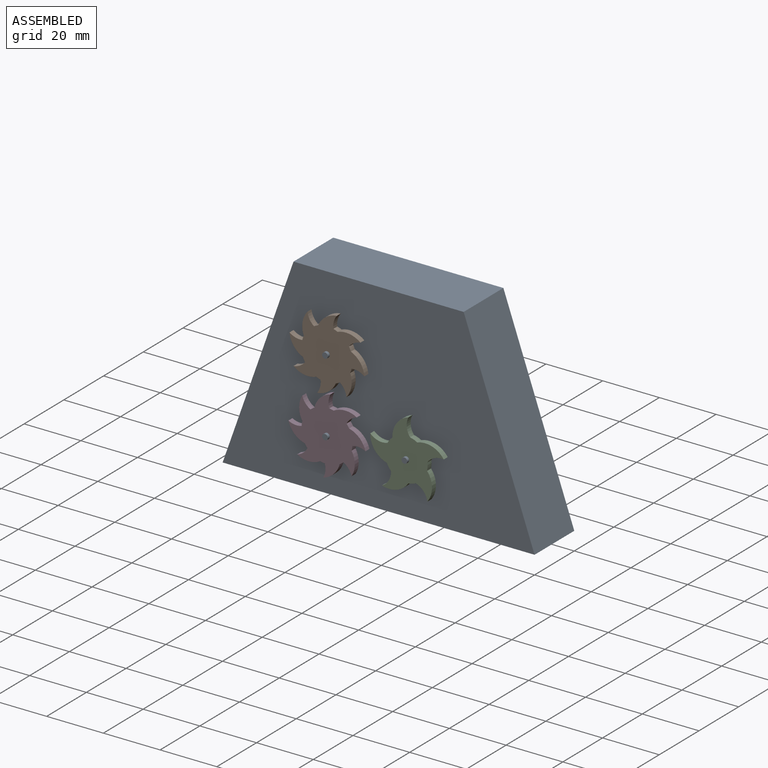
[diagram: assembled view]
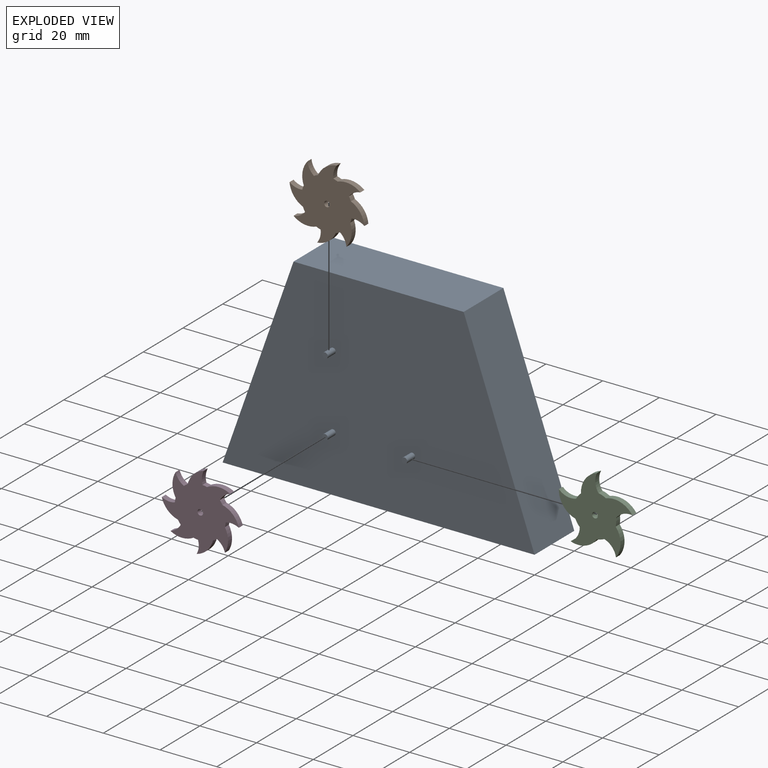
[diagram: exploded view]
GUIDED TOUR — MATED ASSEMBLY (Onshape document 492bed22c7fe8177321e3934, AutoMate assembly 492bed22c7fe8177321e3934_ae06def5e799da685869e2ad_017c99b4e2780a45d808d298_default)

This assembly has 4 components, labeled P0..P3 below (a component is one placed occurrence of a part; the same part can appear more than once), held together by 3 mates. A mate is a constraint between two components; its type names the relative motion it leaves free:
  REVOLUTE — leaves rotation about the listed axis free (a hinge).
Axis/direction vectors are unit vectors and 'through' points are millimeter coordinates, both in the assembly's world frame.

MATES
  1. REVOLUTE "Revolute 2": P0 <-> P1, axis (0.000, 1.000, 0.000) through (-16.53, -14.22, 4.68) mm
  2. REVOLUTE "Revolute 3": P0 <-> P3, axis (0.000, 1.000, 0.000) through (-16.53, -14.22, -21.32) mm
  3. REVOLUTE "Revolute 1": P0 <-> P2, axis (0.000, 1.000, 0.000) through (11.47, -14.22, -21.32) mm

ASSEMBLY ORDER
  1. P0 — the base component [order heuristic]
  2. P3 — core [order heuristic]
  3. P2 [order verified]
  4. P1 [order verified]
Order-tag legend:
  [order verified] — this step's position reverses a verified removal order: the component was checked to insert without passing through the ones already placed.
  [order heuristic] — the first 2 components form the assembly's core: parts whose collision-free extraction could not be verified, listed in mate-graph order.

Of the 4 components, 4 carry the full construction recipe — the FeatureScript program that regenerates the part's solid from scratch; the rest are supplied as boundary geometry only.
Each toured component is shown spotlighted twice — in the assembled view, then in the exploded view, where a leader line traces a displaced component back to its assembled socket (saturated green if recipe-attached, orange if geometry-only; every other component desaturated gray) — followed by its recipe or geometry summary and the mates that hold it.
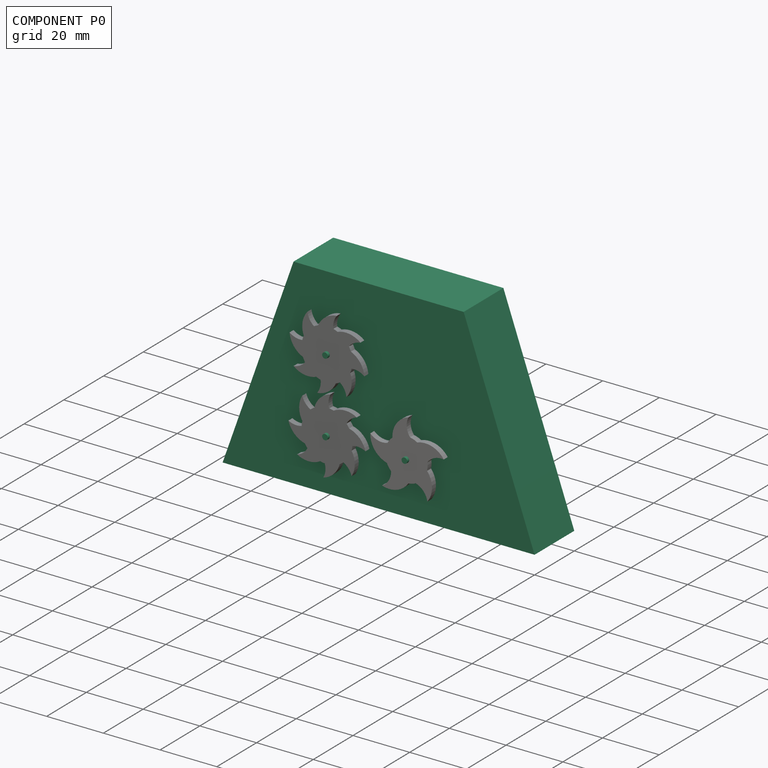
[diagram: component P0 — assembled]
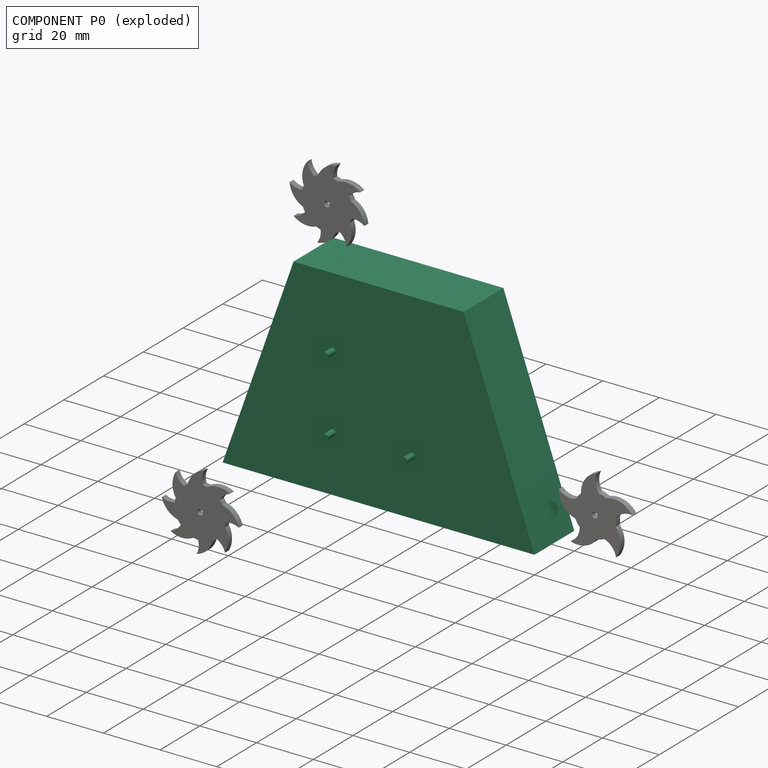
[diagram: component P0 — exploded]
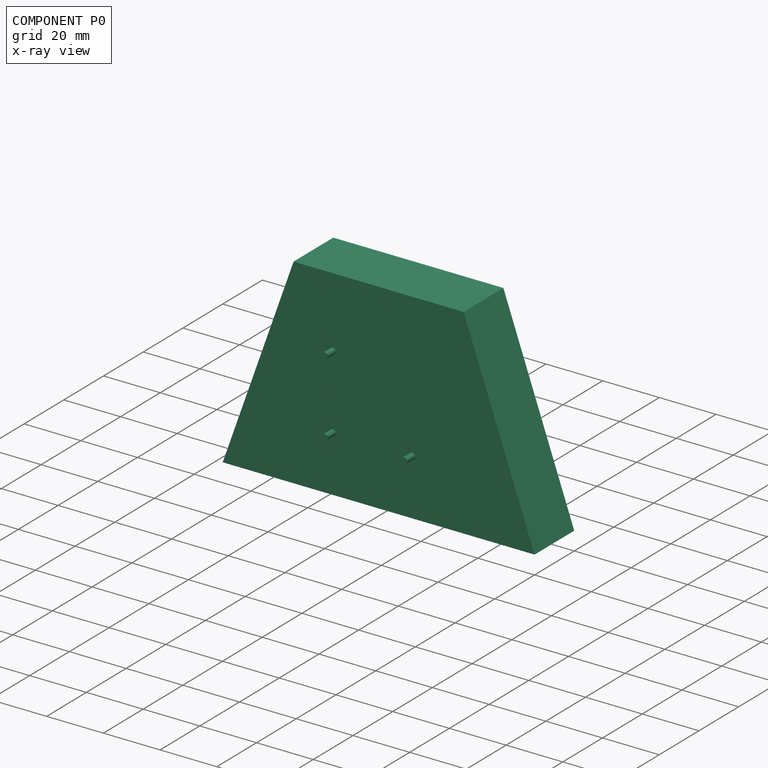
[diagram: component P0 — x-ray view]
COMPONENT P0 — recipe-attached (CADFS 00178075, mesh-verified: the recipe's output STEP matches this component's geometry to below the mesh-comparison resolution (tessellation chordal tolerance ~0.199 mm)).
Held by: REVOLUTE mate "Revolute 2" to P1; REVOLUTE mate "Revolute 3" to P3; REVOLUTE mate "Revolute 1" to P2.
Construction recipe (FeatureScript — the CAD program that rebuilds this solid; sketch coordinates are in the units given by the * unit suffixes, e.g. mm):

FeatureScript 1511;
import(path : "onshape/std/geometry.fs", version : "1511.0");
import(path : "onshape/std/common.fs", version : "1511.0");
const mm = millimeter;
const VERTEX = EntityType.VERTEX;
const EDGE = EntityType.EDGE;
const FACE = EntityType.FACE;
const BODY = EntityType.BODY;
function v(x, y){return vector(x, y);}
function OD(order){return orderDisambiguation(order);}
function OSD(set){return originalSetDisambiguation(set);}
function TD(topology){return topologyDisambiguation(topology);}
function TDD(query){return trueDependencyDisambiguation(query);}
function sQuery(a, b, c) {return sketchEntityQuery(a, b, c);}

annotation { "Feature Type Name" : "Feature", "Feature Type Description" : "" }
export const myFeature = defineFeature(function(context is Context, id is Id, definition is map)
    precondition{}
    {
        {
            var Q0;
            Q0=qCreatedBy(makeId("Front.planeOp"),FACE);
            var sketch = newSketch(context, id + "F0", { "sketchPlane" : qUnion([Q0])});
            skLineSegment(sketch, "E0", {"start": v(0, 32.44) * mm, "end": v(-30, 32.44) * mm});
            skLineSegment(sketch, "E1", {"start": v(-30, 32.44) * mm, "end": v(-55, -38.27) * mm});
            skLineSegment(sketch, "E2", {"start": v(-55, -38.27) * mm, "end": v(0, -38.27) * mm});
            skLineSegment(sketch, "E3", {"start": v(0, 32.44) * mm, "end": v(0, -38.27) * mm, "construction": true});
            skLineSegment(sketch, "E4.MirrorCS", {"start": v(0, 32.44) * mm, "end": v(30, 32.44) * mm});
            skLineSegment(sketch, "E5.MirrorCS", {"start": v(30, 32.44) * mm, "end": v(55, -38.27) * mm});
            skLineSegment(sketch, "E6.MirrorCS", {"start": v(55, -38.27) * mm, "end": v(0, -38.27) * mm});
            skSolve(sketch);
        }
        {
            var Q0;
            Q0 = qSketchRegion(id + "F0", true);
            extrude(context, id + "F1", {"entities" : qUnion([Q0]), "depth" : 20 * mm});
        }
        {
            var Q0;
            Q0=makeQuery(id+"F1.opExtrude","CAP_FACE",FACE,{"disambiguationData":[OSD([sQuery(id+"F0.wireOp",EDGE,"E0"),sQuery(id+"F0.wireOp",EDGE,"E1"),sQuery(id+"F0.wireOp",EDGE,"E2"),sQuery(id+"F0.wireOp",EDGE,"E4.MirrorCS"),sQuery(id+"F0.wireOp",EDGE,"E5.MirrorCS"),sQuery(id+"F0.wireOp",EDGE,"E6.MirrorCS")])],"isStart":false});
            var sketch = newSketch(context, id + "F2", { "sketchPlane" : qUnion([Q0])});
            skCircle(sketch, "E7", {"center": v(-16.1, 7.73) * mm, "radius": 1 * mm});
            skCircle(sketch, "E8", {"center": v(-16.1, -18.27) * mm, "radius": 1 * mm});
            skCircle(sketch, "E9", {"center": v(11.9, -18.27) * mm, "radius": 1 * mm});
            skSolve(sketch);
        }
        {
            var Q0;
            Q0 = qSketchRegion(id + "F2", true);
            extrude(context, id + "F3", {"entities" : qUnion([Q0]), "operationType" : NewBodyOperationType.ADD, "depth" : 4 * mm});
        }
    });
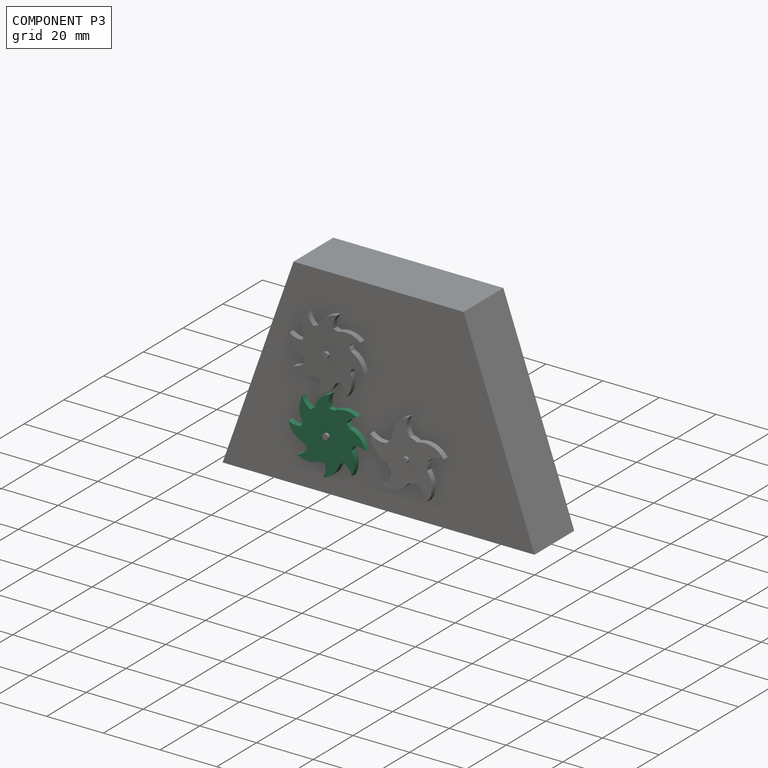
[diagram: component P3 — assembled]
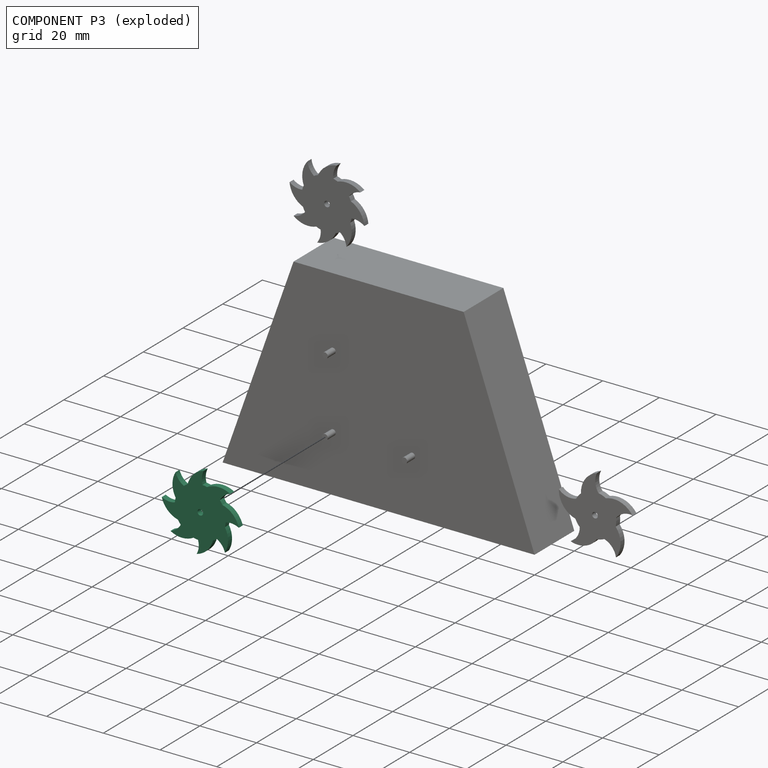
[diagram: component P3 — exploded]
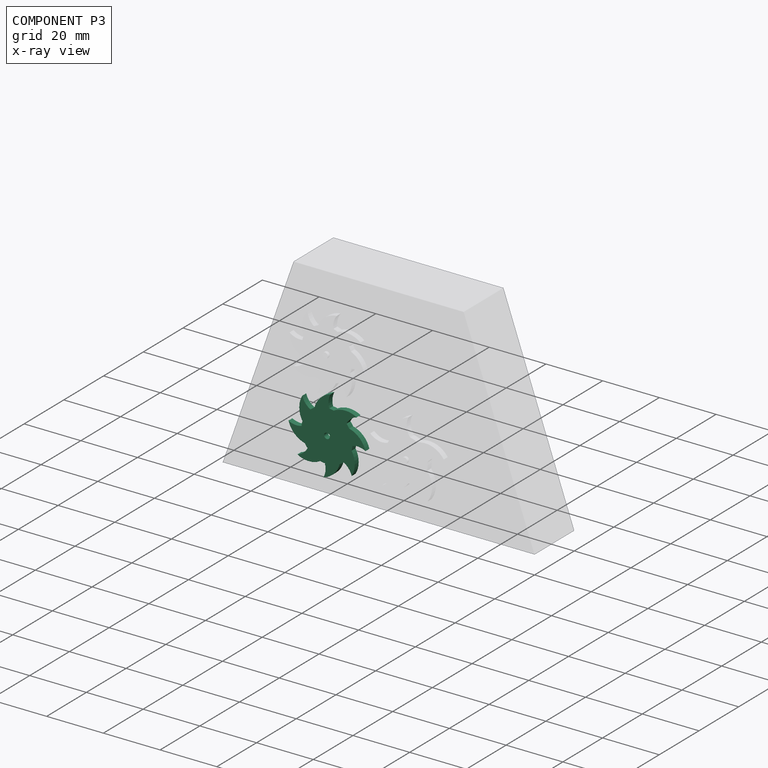
[diagram: component P3 — x-ray view]
COMPONENT P3 — same part as P1 (CADFS 00178074); its construction recipe is shown at P1.
Held by: REVOLUTE mate "Revolute 3" to P0.
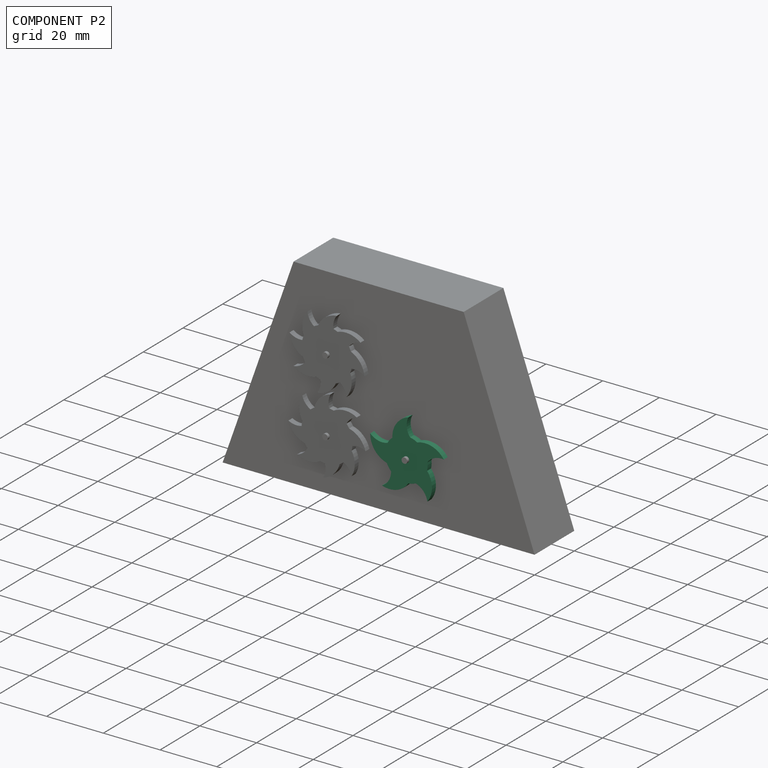
[diagram: component P2 — assembled]
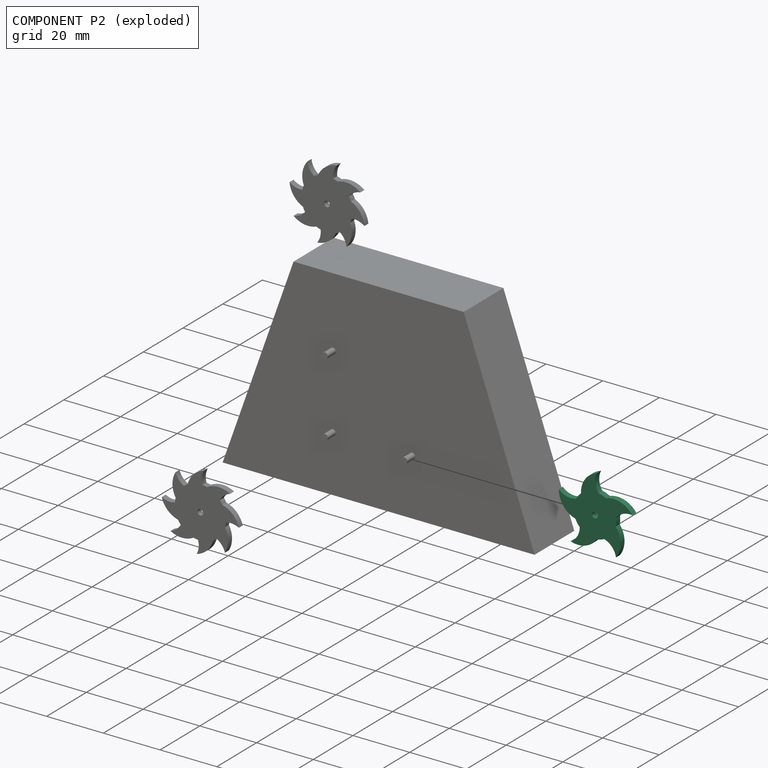
[diagram: component P2 — exploded]
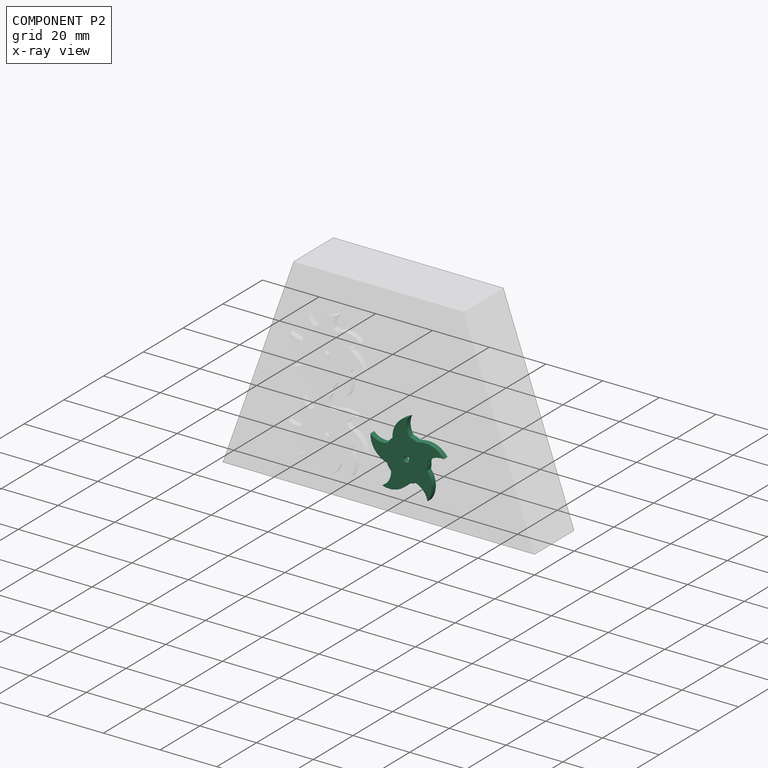
[diagram: component P2 — x-ray view]
COMPONENT P2 — recipe-attached (CADFS 00178073, mesh-verified: the recipe's output STEP matches this component's geometry to below the mesh-comparison resolution (tessellation chordal tolerance ~0.0541 mm)).
Held by: REVOLUTE mate "Revolute 1" to P0.
Construction recipe (FeatureScript — the CAD program that rebuilds this solid; sketch coordinates are in the units given by the * unit suffixes, e.g. mm):

FeatureScript 1511;
import(path : "onshape/std/geometry.fs", version : "1511.0");
import(path : "onshape/std/common.fs", version : "1511.0");
const mm = millimeter;
const VERTEX = EntityType.VERTEX;
const EDGE = EntityType.EDGE;
const FACE = EntityType.FACE;
const BODY = EntityType.BODY;
function v(x, y){return vector(x, y);}
function OD(order){return orderDisambiguation(order);}
function OSD(set){return originalSetDisambiguation(set);}
function TD(topology){return topologyDisambiguation(topology);}
function TDD(query){return trueDependencyDisambiguation(query);}
function sQuery(a, b, c) {return sketchEntityQuery(a, b, c);}

annotation { "Feature Type Name" : "Feature", "Feature Type Description" : "" }
export const myFeature = defineFeature(function(context is Context, id is Id, definition is map)
    precondition{}
    {
        {
            var Q0;
            Q0=qCreatedBy(makeId("Top.planeOp"),FACE);
            var sketch = newSketch(context, id + "F0", { "sketchPlane" : qUnion([Q0])});
            skCircle(sketch, "E0", {"center": v(0, 0) * mm, "radius": 7.5 * mm});
            skLineSegment(sketch, "E1", {"start": v(0, 0) * mm, "end": v(0, 7.5) * mm, "construction": true});
            skArc(sketch, "E2", {"start": v(0.6, 13.63) * mm, "mid": v(-3.56, 10.57) * mm, "end": v(-4.99, 5.6) * mm});
            skArc(sketch, "E3", {"start": v(0.6, 13.63) * mm, "mid": v(0.03, 10.44) * mm, "end": v(1.2, 7.4) * mm});
            skArc(sketch, "E4.1.0", {"start": v(-12.78, 4.8) * mm, "mid": v(-11.16, -0.12) * mm, "end": v(-6.87, -3.02) * mm});
            skArc(sketch, "E4.1.1", {"start": v(-12.78, 4.8) * mm, "mid": v(-9.92, 3.25) * mm, "end": v(-6.67, 3.43) * mm});
            skArc(sketch, "E4.2.0", {"start": v(-8.5, -10.67) * mm, "mid": v(-3.33, -10.65) * mm, "end": v(0.75, -7.46) * mm});
            skArc(sketch, "E4.2.1", {"start": v(-8.5, -10.67) * mm, "mid": v(-6.16, -8.43) * mm, "end": v(-5.32, -5.29) * mm});
            skArc(sketch, "E4.3.0", {"start": v(7.52, -11.39) * mm, "mid": v(9.1, -6.46) * mm, "end": v(7.33, -1.6) * mm});
            skArc(sketch, "E4.3.1", {"start": v(7.52, -11.39) * mm, "mid": v(6.11, -8.46) * mm, "end": v(3.38, -6.7) * mm});
            skArc(sketch, "E4.4.0", {"start": v(13.16, 3.63) * mm, "mid": v(8.95, 6.66) * mm, "end": v(3.78, 6.48) * mm});
            skArc(sketch, "E4.4.1", {"start": v(13.16, 3.63) * mm, "mid": v(9.93, 3.2) * mm, "end": v(7.41, 1.15) * mm});
            skSolve(sketch);
        }
        {
            var Q0;
            Q0 = qSketchRegion(id + "F0", true);
            extrude(context, id + "F1", {"entities" : qUnion([Q0]), "depth" : 2 * mm});
        }
        {
            var Q0;
            Q0=makeQuery(id+"F1.opExtrude","CAP_FACE",FACE,{"disambiguationData":[OSD([sQuery(id+"F0.wireOp",EDGE,"E0"),sQuery(id+"F0.wireOp",EDGE,"E2"),sQuery(id+"F0.wireOp",EDGE,"E3"),sQuery(id+"F0.wireOp",EDGE,"E4.1.0"),sQuery(id+"F0.wireOp",EDGE,"E4.1.1"),sQuery(id+"F0.wireOp",EDGE,"E4.2.0"),sQuery(id+"F0.wireOp",EDGE,"E4.2.1"),sQuery(id+"F0.wireOp",EDGE,"E4.3.0"),sQuery(id+"F0.wireOp",EDGE,"E4.3.1"),sQuery(id+"F0.wireOp",EDGE,"E4.4.0"),sQuery(id+"F0.wireOp",EDGE,"E4.4.1")])],"isStart":false});
            var sketch = newSketch(context, id + "F2", { "sketchPlane" : qUnion([Q0])});
            skCircle(sketch, "E5", {"center": v(0, 0) * mm, "radius": 1 * mm});
            skSolve(sketch);
        }
        {
            var Q0;
            Q0 = qSketchRegion(id + "F2", true);
            extrude(context, id + "F3", {"entities" : qUnion([Q0]), "operationType" : NewBodyOperationType.REMOVE, "endBound" : BoundingType.THROUGH_ALL, "oppositeDirection" : true, "depth" : 25 * mm});
        }
    });
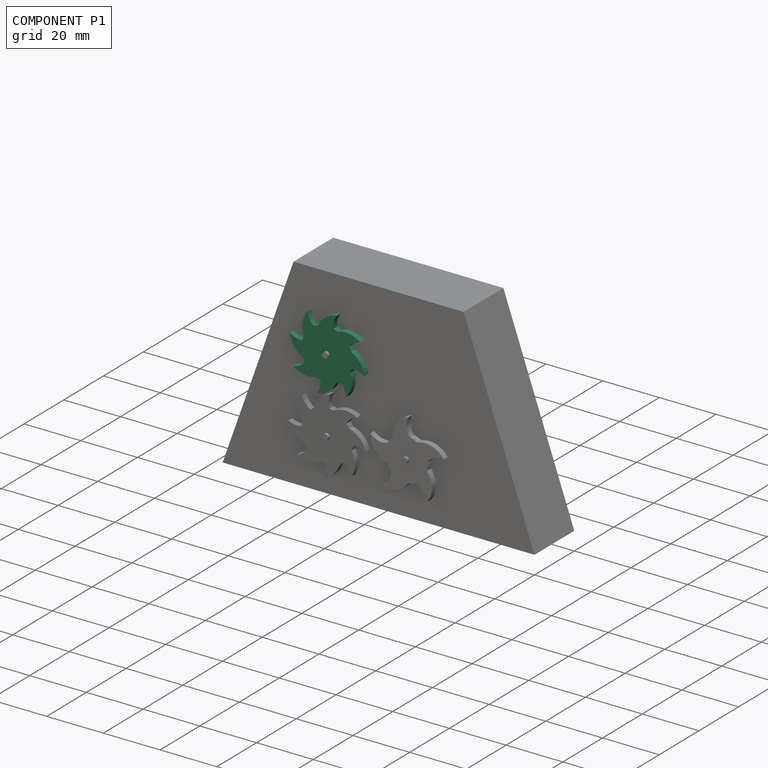
[diagram: component P1 — assembled]
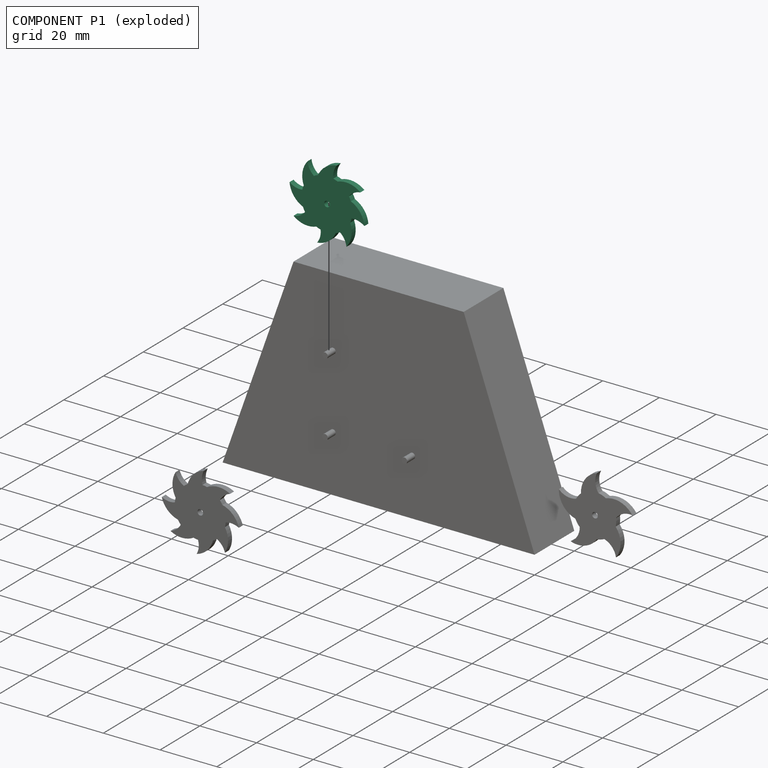
[diagram: component P1 — exploded]
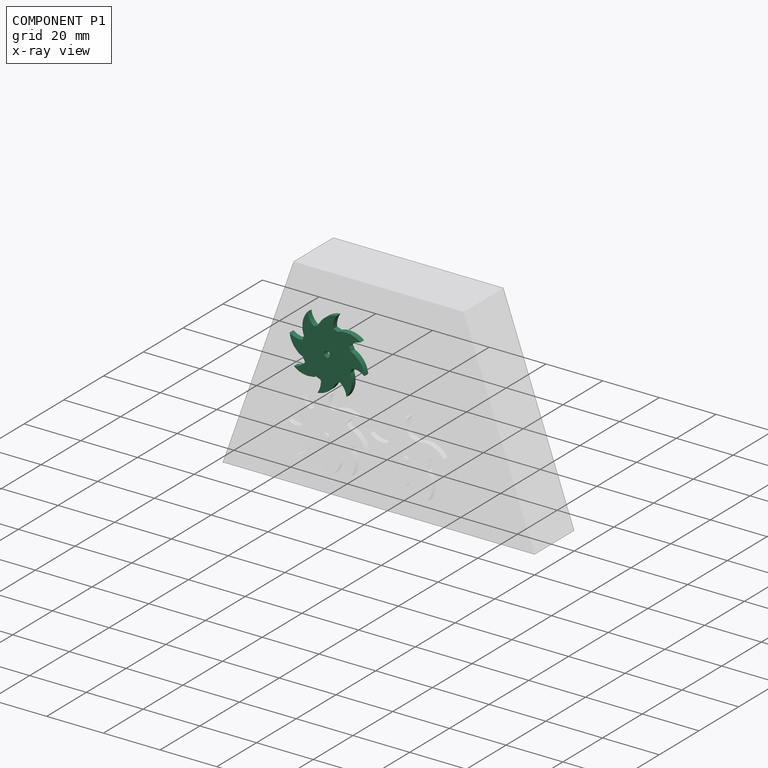
[diagram: component P1 — x-ray view]
COMPONENT P1 — recipe-attached (CADFS 00178074, mesh-verified: the recipe's output STEP matches this component's geometry to below the mesh-comparison resolution (tessellation chordal tolerance ~0.0579 mm)).
Held by: REVOLUTE mate "Revolute 2" to P0.
Construction recipe (FeatureScript — the CAD program that rebuilds this solid; sketch coordinates are in the units given by the * unit suffixes, e.g. mm):

FeatureScript 1511;
import(path : "onshape/std/geometry.fs", version : "1511.0");
import(path : "onshape/std/common.fs", version : "1511.0");
const mm = millimeter;
const VERTEX = EntityType.VERTEX;
const EDGE = EntityType.EDGE;
const FACE = EntityType.FACE;
const BODY = EntityType.BODY;
function v(x, y){return vector(x, y);}
function OD(order){return orderDisambiguation(order);}
function OSD(set){return originalSetDisambiguation(set);}
function TD(topology){return topologyDisambiguation(topology);}
function TDD(query){return trueDependencyDisambiguation(query);}
function sQuery(a, b, c) {return sketchEntityQuery(a, b, c);}

annotation { "Feature Type Name" : "Feature", "Feature Type Description" : "" }
export const myFeature = defineFeature(function(context is Context, id is Id, definition is map)
    precondition{}
    {
        {
            var Q0;
            Q0=qCreatedBy(makeId("Top.planeOp"),FACE);
            var sketch = newSketch(context, id + "F0", { "sketchPlane" : qUnion([Q0])});
            skCircle(sketch, "E0", {"center": v(0, 0) * mm, "radius": 9 * mm});
            skLineSegment(sketch, "E1", {"start": v(0, 0) * mm, "end": v(0, 9) * mm, "construction": true});
            skArc(sketch, "E2", {"start": v(0.6, 13.63) * mm, "mid": v(-2.94, 11.36) * mm, "end": v(-4.84, 7.59) * mm});
            skArc(sketch, "E3", {"start": v(0.6, 13.63) * mm, "mid": v(0, 11.34) * mm, "end": v(0.35, 9) * mm});
            skArc(sketch, "E4.1.0", {"start": v(-9.21, 10.07) * mm, "mid": v(-10.11, 5.95) * mm, "end": v(-8.79, 1.94) * mm});
            skArc(sketch, "E4.1.1", {"start": v(-9.21, 10.07) * mm, "mid": v(-8.01, 8.03) * mm, "end": v(-6.11, 6.6) * mm});
            skArc(sketch, "E4.2.0", {"start": v(-13.63, 0.6) * mm, "mid": v(-11.36, -2.94) * mm, "end": v(-7.59, -4.84) * mm});
            skArc(sketch, "E4.2.1", {"start": v(-13.63, 0.6) * mm, "mid": v(-11.34, 0) * mm, "end": v(-9, 0.35) * mm});
            skArc(sketch, "E4.3.0", {"start": v(-10.07, -9.21) * mm, "mid": v(-5.95, -10.11) * mm, "end": v(-1.94, -8.79) * mm});
            skArc(sketch, "E4.3.1", {"start": v(-10.07, -9.21) * mm, "mid": v(-8.03, -8.01) * mm, "end": v(-6.6, -6.11) * mm});
            skArc(sketch, "E4.4.0", {"start": v(-0.6, -13.63) * mm, "mid": v(2.94, -11.36) * mm, "end": v(4.84, -7.59) * mm});
            skArc(sketch, "E4.4.1", {"start": v(-0.6, -13.63) * mm, "mid": v(0, -11.34) * mm, "end": v(-0.35, -9) * mm});
            skArc(sketch, "E5.3.5.0", {"start": v(9.21, -10.07) * mm, "mid": v(10.11, -5.95) * mm, "end": v(8.79, -1.94) * mm});
            skArc(sketch, "E5.4.5.0", {"start": v(9.21, -10.07) * mm, "mid": v(8.01, -8.03) * mm, "end": v(6.11, -6.6) * mm});
            skArc(sketch, "E5.3.6.0", {"start": v(13.63, -0.6) * mm, "mid": v(11.36, 2.94) * mm, "end": v(7.59, 4.84) * mm});
            skArc(sketch, "E5.4.6.0", {"start": v(13.63, -0.6) * mm, "mid": v(11.34, 0) * mm, "end": v(9, -0.35) * mm});
            skArc(sketch, "E5.3.7.0", {"start": v(10.07, 9.21) * mm, "mid": v(5.95, 10.11) * mm, "end": v(1.94, 8.79) * mm});
            skArc(sketch, "E5.4.7.0", {"start": v(10.07, 9.21) * mm, "mid": v(8.03, 8.01) * mm, "end": v(6.6, 6.11) * mm});
            skSolve(sketch);
        }
        {
            var Q0;
            Q0=qSketchRegion(id+"F0",true);
            extrude(context, id + "F1", {"entities" : qUnion([Q0]), "depth" : 2 * mm});
        }
        {
            var Q0;
            Q0=makeQuery(id+"F1.opExtrude","CAP_FACE",FACE,{"disambiguationData":[OSD([sQuery(id+"F0.wireOp",EDGE,"E0"),sQuery(id+"F0.wireOp",EDGE,"E2"),sQuery(id+"F0.wireOp",EDGE,"E3"),sQuery(id+"F0.wireOp",EDGE,"E4.1.0"),sQuery(id+"F0.wireOp",EDGE,"E4.1.1"),sQuery(id+"F0.wireOp",EDGE,"E4.2.0"),sQuery(id+"F0.wireOp",EDGE,"E4.2.1"),sQuery(id+"F0.wireOp",EDGE,"E4.3.0"),sQuery(id+"F0.wireOp",EDGE,"E4.3.1"),sQuery(id+"F0.wireOp",EDGE,"E4.4.0"),sQuery(id+"F0.wireOp",EDGE,"E4.4.1")])],"isStart":false});
            var sketch = newSketch(context, id + "F2", { "sketchPlane" : qUnion([Q0])});
            skCircle(sketch, "E6", {"center": v(0, 0) * mm, "radius": 1 * mm});
            skSolve(sketch);
        }
        {
            var Q0;
            Q0=qSketchRegion(id+"F2",true);
            extrude(context, id + "F3", {"entities" : qUnion([Q0]), "operationType" : NewBodyOperationType.REMOVE, "endBound" : BoundingType.THROUGH_ALL, "oppositeDirection" : true, "depth" : 25 * mm});
        }
    });
PROVENANCE & LICENSES
Assembly (occurrences, transforms, mates, per-part STEP geometry): AutoMate dataset, Zenodo record 7776208, CC0.
Construction recipes: CADFS (HuggingFace VladPyatov/CADFS, CC-BY-4.0, layered over the ABC dataset), FeatureScript reconstruction programs keyed by ABC model id.
Join: ABC meta listings map ABC model id -> Onshape documentId; within a shared document, parts are matched by geometric signature (bounding-box dims + volume at 0.1% relative tolerance, exact B-rep face/solid counts).
Verification: 4 of this assembly's 4 components carry a recipe attachment, and every attachment is mesh-verified: the CADFS STEP and the AutoMate member STEP were compared as meshes in their shared local frame (symmetric sampled-point-to-mesh distance); worst across the 4 attachments: below the mesh-comparison resolution (tessellation chordal tolerance ~0.199 mm) on a 133 mm part.
Renders: orthographic iso camera (az 35 / el 25); the floor grid conveys scale (grid pitch printed in each image; no ruler). In the exploded view each component is displaced by its stored offset vector: the offsets alone carry the explosion direction (mate normal/axis signs are not orientation cues and do not encode it), and separation distances are assigned per mate-chain, not proportionally to assembly-order depth.
